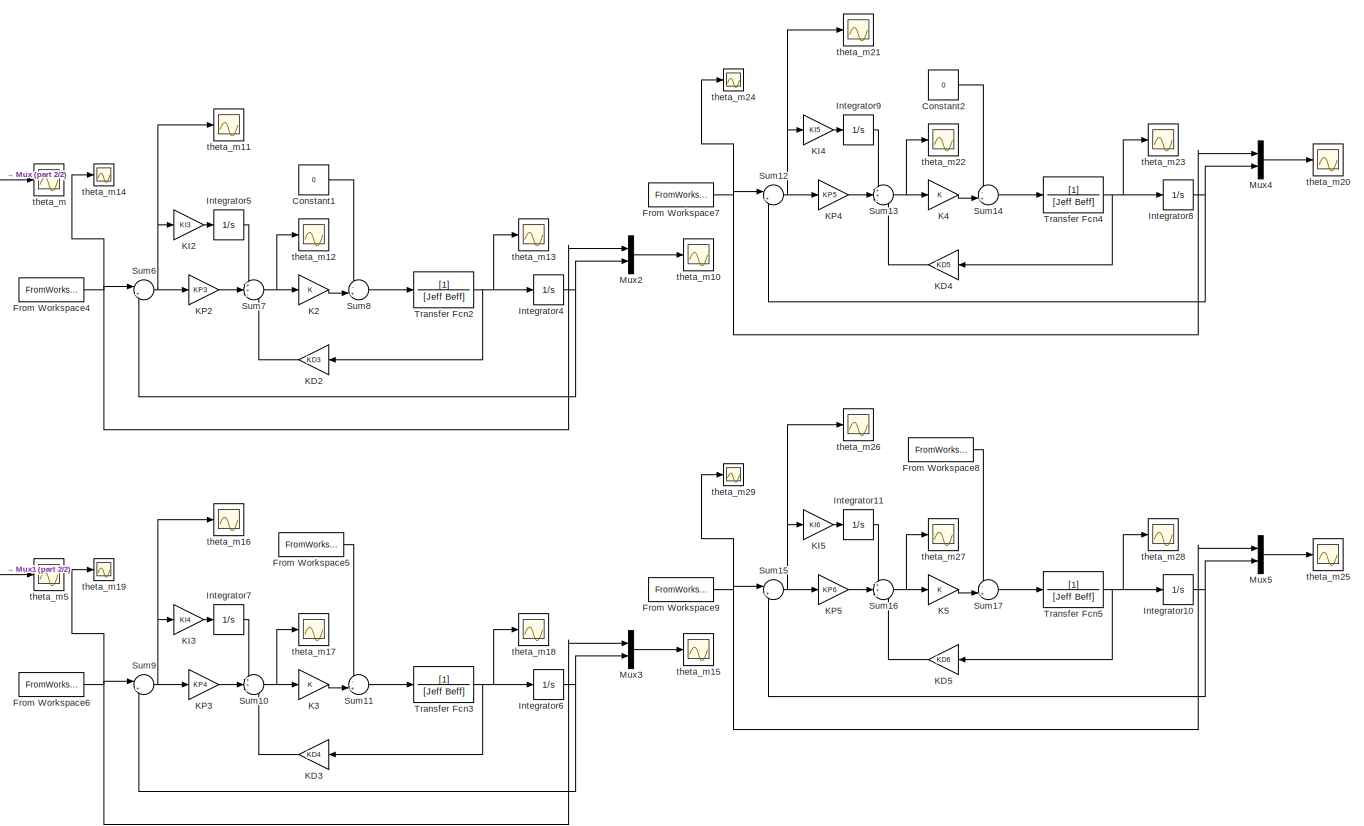
[diagram: root canvas - part 1/2, center side, full height]
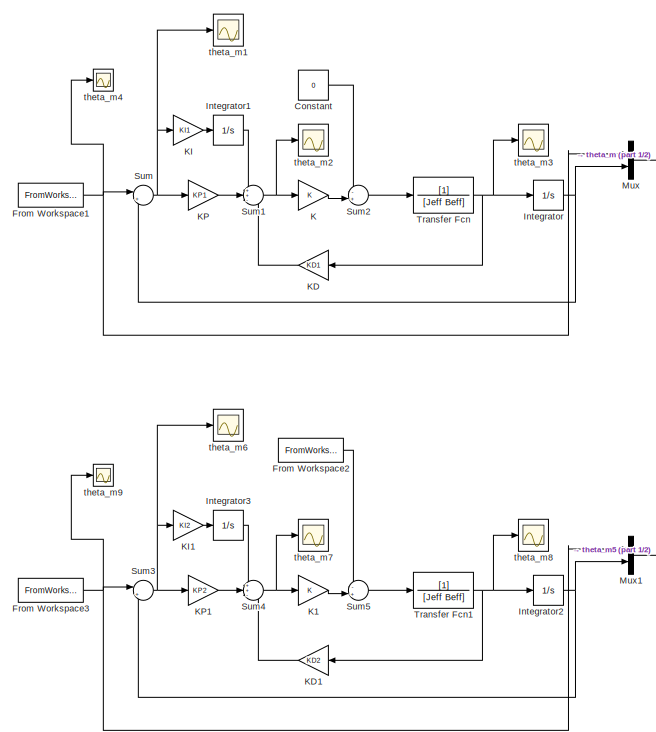
[diagram: root canvas - part 2/2, left side, full height]
MODEL slx_520813a31449
KIND model
BLOCK [Constant] Constant
  Value = 0
BLOCK [Constant] Constant1
  Value = 0
BLOCK [Constant] Constant2
  Value = 0
BLOCK [FromWorkspace] From Workspace1
  SampleTime = 0
  VariableName = Q2
  ZeroCross = on
BLOCK [FromWorkspace] From Workspace2
  SampleTime = 0
  VariableName = T2
  ZeroCross = on
BLOCK [FromWorkspace] From Workspace3
  SampleTime = 0
  VariableName = Q2
  ZeroCross = on
BLOCK [FromWorkspace] From Workspace4
  SampleTime = 0
  VariableName = Q2
  ZeroCross = on
BLOCK [FromWorkspace] From Workspace5
  SampleTime = 0
  VariableName = T2
  ZeroCross = on
BLOCK [FromWorkspace] From Workspace6
  SampleTime = 0
  VariableName = Q2
  ZeroCross = on
BLOCK [FromWorkspace] From Workspace7
  SampleTime = 0
  VariableName = Q2
  ZeroCross = on
BLOCK [FromWorkspace] From Workspace8
  SampleTime = 0
  VariableName = T2
  ZeroCross = on
BLOCK [FromWorkspace] From Workspace9
  SampleTime = 0
  VariableName = Q2
  ZeroCross = on
BLOCK [Integrator] Integrator
  Ports = [1, 1]
BLOCK [Integrator] Integrator1
  Ports = [1, 1]
BLOCK [Integrator] Integrator10
  Ports = [1, 1]
BLOCK [Integrator] Integrator11
  Ports = [1, 1]
BLOCK [Integrator] Integrator2
  Ports = [1, 1]
BLOCK [Integrator] Integrator3
  Ports = [1, 1]
BLOCK [Integrator] Integrator4
  Ports = [1, 1]
BLOCK [Integrator] Integrator5
  Ports = [1, 1]
BLOCK [Integrator] Integrator6
  Ports = [1, 1]
BLOCK [Integrator] Integrator7
  Ports = [1, 1]
BLOCK [Integrator] Integrator8
  Ports = [1, 1]
BLOCK [Integrator] Integrator9
  Ports = [1, 1]
BLOCK [Gain] K
  Gain = K
  OutDataTypeStr = Inherit: Inherit via internal rule
  ParamDataTypeStr = Inherit: Inherit via internal rule
  SaturateOnIntegerOverflow = off
BLOCK [Gain] K1
  Gain = K
  OutDataTypeStr = Inherit: Inherit via internal rule
  ParamDataTypeStr = Inherit: Inherit via internal rule
  SaturateOnIntegerOverflow = off
BLOCK [Gain] K2
  Gain = K
  OutDataTypeStr = Inherit: Inherit via internal rule
  ParamDataTypeStr = Inherit: Inherit via internal rule
  SaturateOnIntegerOverflow = off
BLOCK [Gain] K3
  Gain = K
  OutDataTypeStr = Inherit: Inherit via internal rule
  ParamDataTypeStr = Inherit: Inherit via internal rule
  SaturateOnIntegerOverflow = off
BLOCK [Gain] K4
  Gain = K
  OutDataTypeStr = Inherit: Inherit via internal rule
  ParamDataTypeStr = Inherit: Inherit via internal rule
  SaturateOnIntegerOverflow = off
BLOCK [Gain] K5
  Gain = K
  OutDataTypeStr = Inherit: Inherit via internal rule
  ParamDataTypeStr = Inherit: Inherit via internal rule
  SaturateOnIntegerOverflow = off
BLOCK [Gain] KD
  Gain = KD1
  OutDataTypeStr = Inherit: Inherit via internal rule
  ParamDataTypeStr = Inherit: Inherit via internal rule
  SaturateOnIntegerOverflow = off
BLOCK [Gain] KD1
  Gain = KD2
  OutDataTypeStr = Inherit: Inherit via internal rule
  ParamDataTypeStr = Inherit: Inherit via internal rule
  SaturateOnIntegerOverflow = off
BLOCK [Gain] KD2
  Gain = KD3
  OutDataTypeStr = Inherit: Inherit via internal rule
  ParamDataTypeStr = Inherit: Inherit via internal rule
  SaturateOnIntegerOverflow = off
BLOCK [Gain] KD3
  Gain = KD4
  OutDataTypeStr = Inherit: Inherit via internal rule
  ParamDataTypeStr = Inherit: Inherit via internal rule
  SaturateOnIntegerOverflow = off
BLOCK [Gain] KD4
  Gain = KD5
  OutDataTypeStr = Inherit: Inherit via internal rule
  ParamDataTypeStr = Inherit: Inherit via internal rule
  SaturateOnIntegerOverflow = off
BLOCK [Gain] KD5
  Gain = KD6
  OutDataTypeStr = Inherit: Inherit via internal rule
  ParamDataTypeStr = Inherit: Inherit via internal rule
  SaturateOnIntegerOverflow = off
BLOCK [Gain] KI
  Gain = KI1
  OutDataTypeStr = Inherit: Inherit via internal rule
  ParamDataTypeStr = Inherit: Inherit via internal rule
  SaturateOnIntegerOverflow = off
BLOCK [Gain] KI1
  Gain = KI2
  OutDataTypeStr = Inherit: Inherit via internal rule
  ParamDataTypeStr = Inherit: Inherit via internal rule
  SaturateOnIntegerOverflow = off
BLOCK [Gain] KI2
  Gain = KI3
  OutDataTypeStr = Inherit: Inherit via internal rule
  ParamDataTypeStr = Inherit: Inherit via internal rule
  SaturateOnIntegerOverflow = off
BLOCK [Gain] KI3
  Gain = KI4
  OutDataTypeStr = Inherit: Inherit via internal rule
  ParamDataTypeStr = Inherit: Inherit via internal rule
  SaturateOnIntegerOverflow = off
BLOCK [Gain] KI4
  Gain = KI5
  OutDataTypeStr = Inherit: Inherit via internal rule
  ParamDataTypeStr = Inherit: Inherit via internal rule
  SaturateOnIntegerOverflow = off
BLOCK [Gain] KI5
  Gain = KI6
  OutDataTypeStr = Inherit: Inherit via internal rule
  ParamDataTypeStr = Inherit: Inherit via internal rule
  SaturateOnIntegerOverflow = off
BLOCK [Gain] KP
  Gain = KP1
  OutDataTypeStr = Inherit: Inherit via internal rule
  ParamDataTypeStr = Inherit: Inherit via internal rule
  SaturateOnIntegerOverflow = off
BLOCK [Gain] KP1
  Gain = KP2
  OutDataTypeStr = Inherit: Inherit via internal rule
  ParamDataTypeStr = Inherit: Inherit via internal rule
  SaturateOnIntegerOverflow = off
BLOCK [Gain] KP2
  Gain = KP3
  OutDataTypeStr = Inherit: Inherit via internal rule
  ParamDataTypeStr = Inherit: Inherit via internal rule
  SaturateOnIntegerOverflow = off
BLOCK [Gain] KP3
  Gain = KP4
  OutDataTypeStr = Inherit: Inherit via internal rule
  ParamDataTypeStr = Inherit: Inherit via internal rule
  SaturateOnIntegerOverflow = off
BLOCK [Gain] KP4
  Gain = KP5
  OutDataTypeStr = Inherit: Inherit via internal rule
  ParamDataTypeStr = Inherit: Inherit via internal rule
  SaturateOnIntegerOverflow = off
BLOCK [Gain] KP5
  Gain = KP6
  OutDataTypeStr = Inherit: Inherit via internal rule
  ParamDataTypeStr = Inherit: Inherit via internal rule
  SaturateOnIntegerOverflow = off
BLOCK [Mux] Mux
  DisplayOption = bar
  Inputs = 2
  Ports = [2, 1]
BLOCK [Mux] Mux1
  DisplayOption = bar
  Inputs = 2
  Ports = [2, 1]
BLOCK [Mux] Mux2
  DisplayOption = bar
  Inputs = 2
  Ports = [2, 1]
BLOCK [Mux] Mux3
  DisplayOption = bar
  Inputs = 2
  Ports = [2, 1]
BLOCK [Mux] Mux4
  DisplayOption = bar
  Inputs = 2
  Ports = [2, 1]
BLOCK [Mux] Mux5
  DisplayOption = bar
  Inputs = 2
  Ports = [2, 1]
BLOCK [Sum] Sum
  IconShape = round
  InputSameDT = off
  Inputs = |+-
  OutDataTypeStr = Inherit: Inherit via internal rule
  Ports = [2, 1]
  SaturateOnIntegerOverflow = off
BLOCK [Sum] Sum1
  IconShape = round
  InputSameDT = off
  Inputs = ++-
  OutDataTypeStr = Inherit: Inherit via internal rule
  Ports = [3, 1]
  SaturateOnIntegerOverflow = off
BLOCK [Sum] Sum10
  IconShape = round
  InputSameDT = off
  Inputs = ++-
  OutDataTypeStr = Inherit: Inherit via internal rule
  Ports = [3, 1]
  SaturateOnIntegerOverflow = off
BLOCK [Sum] Sum11
  IconShape = round
  InputSameDT = off
  Inputs = -+|
  OutDataTypeStr = Inherit: Inherit via internal rule
  Ports = [2, 1]
  SaturateOnIntegerOverflow = off
BLOCK [Sum] Sum12
  IconShape = round
  InputSameDT = off
  Inputs = |+-
  OutDataTypeStr = Inherit: Inherit via internal rule
  Ports = [2, 1]
  SaturateOnIntegerOverflow = off
BLOCK [Sum] Sum13
  IconShape = round
  InputSameDT = off
  Inputs = ++-
  OutDataTypeStr = Inherit: Inherit via internal rule
  Ports = [3, 1]
  SaturateOnIntegerOverflow = off
BLOCK [Sum] Sum14
  IconShape = round
  InputSameDT = off
  Inputs = -+|
  OutDataTypeStr = Inherit: Inherit via internal rule
  Ports = [2, 1]
  SaturateOnIntegerOverflow = off
BLOCK [Sum] Sum15
  IconShape = round
  InputSameDT = off
  Inputs = |+-
  OutDataTypeStr = Inherit: Inherit via internal rule
  Ports = [2, 1]
  SaturateOnIntegerOverflow = off
BLOCK [Sum] Sum16
  IconShape = round
  InputSameDT = off
  Inputs = ++-
  OutDataTypeStr = Inherit: Inherit via internal rule
  Ports = [3, 1]
  SaturateOnIntegerOverflow = off
BLOCK [Sum] Sum17
  IconShape = round
  InputSameDT = off
  Inputs = -+|
  OutDataTypeStr = Inherit: Inherit via internal rule
  Ports = [2, 1]
  SaturateOnIntegerOverflow = off
BLOCK [Sum] Sum2
  IconShape = round
  InputSameDT = off
  Inputs = -+|
  OutDataTypeStr = Inherit: Inherit via internal rule
  Ports = [2, 1]
  SaturateOnIntegerOverflow = off
BLOCK [Sum] Sum3
  IconShape = round
  InputSameDT = off
  Inputs = |+-
  OutDataTypeStr = Inherit: Inherit via internal rule
  Ports = [2, 1]
  SaturateOnIntegerOverflow = off
BLOCK [Sum] Sum4
  IconShape = round
  InputSameDT = off
  Inputs = ++-
  OutDataTypeStr = Inherit: Inherit via internal rule
  Ports = [3, 1]
  SaturateOnIntegerOverflow = off
BLOCK [Sum] Sum5
  IconShape = round
  InputSameDT = off
  Inputs = -+|
  OutDataTypeStr = Inherit: Inherit via internal rule
  Ports = [2, 1]
  SaturateOnIntegerOverflow = off
BLOCK [Sum] Sum6
  IconShape = round
  InputSameDT = off
  Inputs = |+-
  OutDataTypeStr = Inherit: Inherit via internal rule
  Ports = [2, 1]
  SaturateOnIntegerOverflow = off
BLOCK [Sum] Sum7
  IconShape = round
  InputSameDT = off
  Inputs = ++-
  OutDataTypeStr = Inherit: Inherit via internal rule
  Ports = [3, 1]
  SaturateOnIntegerOverflow = off
BLOCK [Sum] Sum8
  IconShape = round
  InputSameDT = off
  Inputs = -+|
  OutDataTypeStr = Inherit: Inherit via internal rule
  Ports = [2, 1]
  SaturateOnIntegerOverflow = off
BLOCK [Sum] Sum9
  IconShape = round
  InputSameDT = off
  Inputs = |+-
  OutDataTypeStr = Inherit: Inherit via internal rule
  Ports = [2, 1]
  SaturateOnIntegerOverflow = off
BLOCK [TransferFcn] Transfer Fcn
  Denominator = [Jeff Beff]
BLOCK [TransferFcn] Transfer Fcn1
  Denominator = [Jeff Beff]
BLOCK [TransferFcn] Transfer Fcn2
  Denominator = [Jeff Beff]
BLOCK [TransferFcn] Transfer Fcn3
  Denominator = [Jeff Beff]
BLOCK [TransferFcn] Transfer Fcn4
  Denominator = [Jeff Beff]
BLOCK [TransferFcn] Transfer Fcn5
  Denominator = [Jeff Beff]
BLOCK [Scope] theta_m
  Floating = off
  NumInputPorts = 1
  Ports = [1]
  SaveName = ver1
  SaveToWorkspace = on
  ShowLegends = off
  TimeRange = 10
  YMax = 0.5
  YMin = 0
BLOCK [Scope] theta_m1
  Floating = off
  NumInputPorts = 1
  Ports = [1]
  SaveName = ScopeData1
  ShowLegends = off
BLOCK [Scope] theta_m10
  Floating = off
  NumInputPorts = 1
  Ports = [1]
  SaveName = ver3
  SaveToWorkspace = on
  ShowLegends = off
  TimeRange = 10
  YMax = 0.5
  YMin = 0
BLOCK [Scope] theta_m11
  Floating = off
  NumInputPorts = 1
  Ports = [1]
  SaveName = ScopeData8
  ShowLegends = off
BLOCK [Scope] theta_m12
  Floating = off
  NumInputPorts = 1
  Ports = [1]
  SaveName = ScopeData9
  ShowLegends = off
BLOCK [Scope] theta_m13
  Floating = off
  NumInputPorts = 1
  Ports = [1]
  SaveName = ScopeData10
  ShowLegends = off
BLOCK [Scope] theta_m14
  Floating = off
  NumInputPorts = 1
  Ports = [1]
  SaveName = ScopeData11
  ShowLegends = off
BLOCK [Scope] theta_m15
  Floating = off
  NumInputPorts = 1
  Ports = [1]
  SaveName = ver4
  SaveToWorkspace = on
  ShowLegends = off
  TimeRange = 10
  YMax = 0.5
  YMin = 0
BLOCK [Scope] theta_m16
  Floating = off
  NumInputPorts = 1
  Ports = [1]
  SaveName = ScopeData12
  ShowLegends = off
BLOCK [Scope] theta_m17
  Floating = off
  NumInputPorts = 1
  Ports = [1]
  SaveName = ScopeData13
  ShowLegends = off
BLOCK [Scope] theta_m18
  Floating = off
  NumInputPorts = 1
  Ports = [1]
  SaveName = ScopeData14
  ShowLegends = off
BLOCK [Scope] theta_m19
  Floating = off
  NumInputPorts = 1
  Ports = [1]
  SaveName = ScopeData15
  ShowLegends = off
BLOCK [Scope] theta_m2
  Floating = off
  NumInputPorts = 1
  Ports = [1]
  SaveName = ScopeData2
  ShowLegends = off
BLOCK [Scope] theta_m20
  Floating = off
  NumInputPorts = 1
  Ports = [1]
  SaveName = ver5
  SaveToWorkspace = on
  ShowLegends = off
  TimeRange = 10
  YMax = 0.5
  YMin = 0
BLOCK [Scope] theta_m21
  Floating = off
  NumInputPorts = 1
  Ports = [1]
  SaveName = ScopeData16
  ShowLegends = off
BLOCK [Scope] theta_m22
  Floating = off
  NumInputPorts = 1
  Ports = [1]
  SaveName = ScopeData17
  ShowLegends = off
BLOCK [Scope] theta_m23
  Floating = off
  NumInputPorts = 1
  Ports = [1]
  SaveName = ScopeData18
  ShowLegends = off
BLOCK [Scope] theta_m24
  Floating = off
  NumInputPorts = 1
  Ports = [1]
  SaveName = ScopeData19
  ShowLegends = off
BLOCK [Scope] theta_m25
  Floating = off
  NumInputPorts = 1
  Ports = [1]
  SaveName = ver6
  SaveToWorkspace = on
  ShowLegends = off
  TimeRange = 10
  YMax = 0.5
  YMin = 0
BLOCK [Scope] theta_m26
  Floating = off
  NumInputPorts = 1
  Ports = [1]
  SaveName = ScopeData20
  ShowLegends = off
BLOCK [Scope] theta_m27
  Floating = off
  NumInputPorts = 1
  Ports = [1]
  SaveName = ScopeData21
  ShowLegends = off
BLOCK [Scope] theta_m28
  Floating = off
  NumInputPorts = 1
  Ports = [1]
  SaveName = ScopeData22
  ShowLegends = off
BLOCK [Scope] theta_m29
  Floating = off
  NumInputPorts = 1
  Ports = [1]
  SaveName = ScopeData23
  ShowLegends = off
BLOCK [Scope] theta_m3
  Floating = off
  NumInputPorts = 1
  Ports = [1]
  SaveName = ScopeData3
  ShowLegends = off
BLOCK [Scope] theta_m4
  Floating = off
  NumInputPorts = 1
  Ports = [1]
  SaveName = ScopeData4
  ShowLegends = off
BLOCK [Scope] theta_m5
  Floating = off
  NumInputPorts = 1
  Ports = [1]
  SaveName = ver2
  SaveToWorkspace = on
  ShowLegends = off
  TimeRange = 10
  YMax = 0.5
  YMin = 0
BLOCK [Scope] theta_m6
  Floating = off
  NumInputPorts = 1
  Ports = [1]
  ShowLegends = off
BLOCK [Scope] theta_m7
  Floating = off
  NumInputPorts = 1
  Ports = [1]
  SaveName = ScopeData5
  ShowLegends = off
BLOCK [Scope] theta_m8
  Floating = off
  NumInputPorts = 1
  Ports = [1]
  SaveName = ScopeData6
  ShowLegends = off
BLOCK [Scope] theta_m9
  Floating = off
  NumInputPorts = 1
  Ports = [1]
  SaveName = ScopeData7
  ShowLegends = off
LINE Constant1:1 -> Sum8:1
LINE Constant2:1 -> Sum14:1
LINE Constant:1 -> Sum2:1
NET From Workspace1:1 -> Mux:1, Sum:1, theta_m4:1
LINE From Workspace2:1 -> Sum5:1
NET From Workspace3:1 -> Mux1:1, Sum3:1, theta_m9:1
NET From Workspace4:1 -> Mux2:1, Sum6:1, theta_m14:1
LINE From Workspace5:1 -> Sum11:1
NET From Workspace6:1 -> Mux3:1, Sum9:1, theta_m19:1
NET From Workspace7:1 -> Mux4:1, Sum12:1, theta_m24:1
LINE From Workspace8:1 -> Sum17:1
NET From Workspace9:1 -> Mux5:1, Sum15:1, theta_m29:1
NET Integrator10:1 -> Mux5:2, Sum15:2
LINE Integrator11:1 -> Sum16:1
LINE Integrator1:1 -> Sum1:1
NET Integrator2:1 -> Mux1:2, Sum3:2
LINE Integrator3:1 -> Sum4:1
NET Integrator4:1 -> Mux2:2, Sum6:2
LINE Integrator5:1 -> Sum7:1
NET Integrator6:1 -> Mux3:2, Sum9:2
LINE Integrator7:1 -> Sum10:1
NET Integrator8:1 -> Mux4:2, Sum12:2
LINE Integrator9:1 -> Sum13:1
NET Integrator:1 -> Mux:2, Sum:2
LINE K1:1 -> Sum5:2
LINE K2:1 -> Sum8:2
LINE K3:1 -> Sum11:2
LINE K4:1 -> Sum14:2
LINE K5:1 -> Sum17:2
LINE K:1 -> Sum2:2
LINE KD1:1 -> Sum4:3
LINE KD2:1 -> Sum7:3
LINE KD3:1 -> Sum10:3
LINE KD4:1 -> Sum13:3
LINE KD5:1 -> Sum16:3
LINE KD:1 -> Sum1:3
LINE KI1:1 -> Integrator3:1
LINE KI2:1 -> Integrator5:1
LINE KI3:1 -> Integrator7:1
LINE KI4:1 -> Integrator9:1
LINE KI5:1 -> Integrator11:1
LINE KI:1 -> Integrator1:1
LINE KP1:1 -> Sum4:2
LINE KP2:1 -> Sum7:2
LINE KP3:1 -> Sum10:2
LINE KP4:1 -> Sum13:2
LINE KP5:1 -> Sum16:2
LINE KP:1 -> Sum1:2
LINE Mux1:1 -> theta_m5:1
LINE Mux2:1 -> theta_m10:1
LINE Mux3:1 -> theta_m15:1
LINE Mux4:1 -> theta_m20:1
LINE Mux5:1 -> theta_m25:1
LINE Mux:1 -> theta_m:1
NET Sum10:1 -> K3:1, theta_m17:1
LINE Sum11:1 -> Transfer Fcn3:1
NET Sum12:1 -> KI4:1, KP4:1, theta_m21:1
NET Sum13:1 -> K4:1, theta_m22:1
LINE Sum14:1 -> Transfer Fcn4:1
NET Sum15:1 -> KI5:1, KP5:1, theta_m26:1
NET Sum16:1 -> K5:1, theta_m27:1
LINE Sum17:1 -> Transfer Fcn5:1
NET Sum1:1 -> K:1, theta_m2:1
LINE Sum2:1 -> Transfer Fcn:1
NET Sum3:1 -> KI1:1, KP1:1, theta_m6:1
NET Sum4:1 -> K1:1, theta_m7:1
LINE Sum5:1 -> Transfer Fcn1:1
NET Sum6:1 -> KI2:1, KP2:1, theta_m11:1
NET Sum7:1 -> K2:1, theta_m12:1
LINE Sum8:1 -> Transfer Fcn2:1
NET Sum9:1 -> KI3:1, KP3:1, theta_m16:1
NET Sum:1 -> KI:1, KP:1, theta_m1:1
NET Transfer Fcn1:1 -> Integrator2:1, KD1:1, theta_m8:1
NET Transfer Fcn2:1 -> Integrator4:1, KD2:1, theta_m13:1
NET Transfer Fcn3:1 -> Integrator6:1, KD3:1, theta_m18:1
NET Transfer Fcn4:1 -> Integrator8:1, KD4:1, theta_m23:1
NET Transfer Fcn5:1 -> Integrator10:1, KD5:1, theta_m28:1
NET Transfer Fcn:1 -> Integrator:1, KD:1, theta_m3:1
note: NET lines group one-source signal fan-out (src -> all destinations, sorted); 1:1 wires keep LINE
